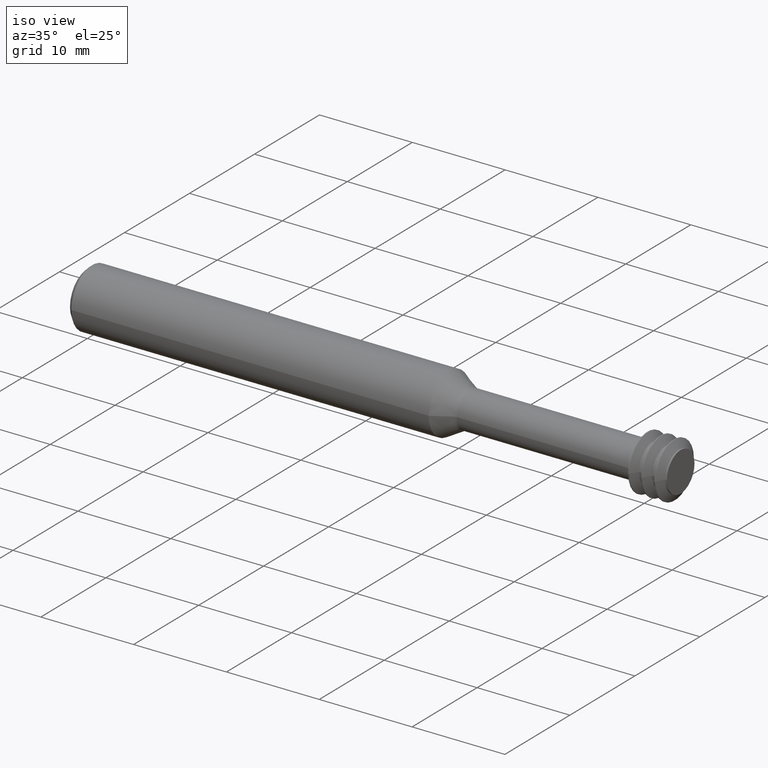
[diagram: clean part render]
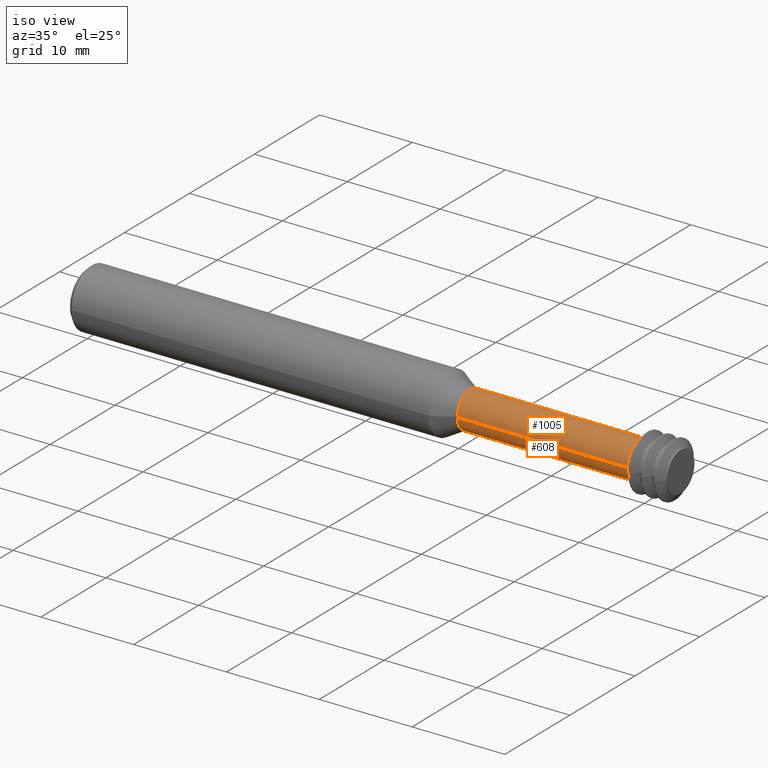
[diagram: same view with one multi-face feature highlighted, each face labeled with its STEP entity id]
A machine part, iso view. The highlighted faces form ONE feature: a constant-radius fillet chain: 2 tangent blend faces with common blend radius 1.9812 mm. The faces share edges in the B-rep.
Their STEP definitions:
[1] entity #608 (Cylinder):
#53 = CARTESIAN_POINT ( 'NONE',  ( 2.350000000000000089, 0.07800000000000002764, 9.552245033349358517E-18 ) ) ;
#56 = ORIENTED_EDGE ( 'NONE', *, *, #462, .F. ) ;
#58 = DIRECTION ( 'NONE',  ( 0.000000000000000000, 1.000000000000000000, 0.000000000000000000 ) ) ;
#89 = CARTESIAN_POINT ( 'NONE',  ( 2.350000000000000089, 0.07800000000000002764, 9.552245033349358517E-18 ) ) ;
#151 = CARTESIAN_POINT ( 'NONE',  ( 2.350000000000000089, -7.258347044323575049E-19, 0.000000000000000000 ) ) ;
#152 = DIRECTION ( 'NONE',  ( 0.000000000000000000, -1.000000000000000000, 0.000000000000000000 ) ) ;
#159 = EDGE_CURVE ( 'NONE', #473, #269, #414, .T. ) ;
#177 = DIRECTION ( 'NONE',  ( -1.000000000000000000, 2.239313081137374464E-19, -0.000000000000000000 ) ) ;
#206 = VERTEX_POINT ( 'NONE', #89 ) ;
#269 = VERTEX_POINT ( 'NONE', #614 ) ;
#286 = EDGE_LOOP ( 'NONE', ( #910, #56, #298, #946 ) ) ;
#298 = ORIENTED_EDGE ( 'NONE', *, *, #959, .T. ) ;
#308 = CARTESIAN_POINT ( 'NONE',  ( 2.350000000000000089, -0.07800000000000002764, 0.000000000000000000 ) ) ;
#339 = CYLINDRICAL_SURFACE ( 'NONE', #344, 0.07800000000000002764 ) ;
#344 = AXIS2_PLACEMENT_3D ( 'NONE', #736, #177, #586 ) ;
#411 = FACE_OUTER_BOUND ( 'NONE', #286, .T. ) ;
#414 = CIRCLE ( 'NONE', #769, 0.07800000000000006928 ) ;
#462 = EDGE_CURVE ( 'NONE', #866, #206, #870, .T. ) ;
#473 = VERTEX_POINT ( 'NONE', #636 ) ;
#543 = EDGE_CURVE ( 'NONE', #206, #473, #792, .T. ) ;
#586 = DIRECTION ( 'NONE',  ( 0.000000000000000000, -1.000000000000000000, 0.000000000000000000 ) ) ;
#608 = ADVANCED_FACE ( 'NONE', ( #411 ), #339, .T. ) ;
#614 = CARTESIAN_POINT ( 'NONE',  ( 1.623698729810778119, -0.07800000000000006928, 0.000000000000000000 ) ) ;
#631 = CARTESIAN_POINT ( 'NONE',  ( 2.350000000000000089, -0.07800000000000002764, 0.000000000000000000 ) ) ;
#636 = CARTESIAN_POINT ( 'NONE',  ( 1.623698729810778119, 0.07800000000000006928, 9.757334483877418539E-18 ) ) ;
#637 = CARTESIAN_POINT ( 'NONE',  ( 1.623698729810778119, -5.631931109142160038E-19, 0.000000000000000000 ) ) ;
#736 = CARTESIAN_POINT ( 'NONE',  ( 2.350000000000000089, -7.258347044323575049E-19, 0.000000000000000000 ) ) ;
#738 = DIRECTION ( 'NONE',  ( -1.000000000000000000, 2.239313081137374464E-19, -0.000000000000000000 ) ) ;
#769 = AXIS2_PLACEMENT_3D ( 'NONE', #637, #738, #152 ) ;
#792 = LINE ( 'NONE', #53, #1003 ) ;
#854 = VECTOR ( 'NONE', #1024, 39.37007874015748143 ) ;
#866 = VERTEX_POINT ( 'NONE', #631 ) ;
#870 = CIRCLE ( 'NONE', #987, 0.07800000000000002764 ) ;
#880 = DIRECTION ( 'NONE',  ( -1.000000000000000000, 2.239313081137374464E-19, -0.000000000000000000 ) ) ;
#887 = LINE ( 'NONE', #308, #854 ) ;
#910 = ORIENTED_EDGE ( 'NONE', *, *, #543, .F. ) ;
#946 = ORIENTED_EDGE ( 'NONE', *, *, #159, .F. ) ;
#959 = EDGE_CURVE ( 'NONE', #866, #269, #887, .T. ) ;
#987 = AXIS2_PLACEMENT_3D ( 'NONE', #151, #1030, #58 ) ;
#1003 = VECTOR ( 'NONE', #880, 39.37007874015748143 ) ;
#1024 = DIRECTION ( 'NONE',  ( -1.000000000000000000, 2.239313081137374464E-19, -0.000000000000000000 ) ) ;
#1030 = DIRECTION ( 'NONE',  ( 1.000000000000000000, -2.239313081137374464E-19, 0.000000000000000000 ) ) ;
[2] entity #1005 (Cylinder):
#53 = CARTESIAN_POINT ( 'NONE',  ( 2.350000000000000089, 0.07800000000000002764, 9.552245033349358517E-18 ) ) ;
#89 = CARTESIAN_POINT ( 'NONE',  ( 2.350000000000000089, 0.07800000000000002764, 9.552245033349358517E-18 ) ) ;
#90 = ORIENTED_EDGE ( 'NONE', *, *, #355, .F. ) ;
#142 = CYLINDRICAL_SURFACE ( 'NONE', #453, 0.07800000000000002764 ) ;
#206 = VERTEX_POINT ( 'NONE', #89 ) ;
#255 = CARTESIAN_POINT ( 'NONE',  ( 1.623698729810778119, -5.631931109142160038E-19, 0.000000000000000000 ) ) ;
#269 = VERTEX_POINT ( 'NONE', #614 ) ;
#308 = CARTESIAN_POINT ( 'NONE',  ( 2.350000000000000089, -0.07800000000000002764, 0.000000000000000000 ) ) ;
#355 = EDGE_CURVE ( 'NONE', #206, #866, #836, .T. ) ;
#407 = DIRECTION ( 'NONE',  ( -1.000000000000000000, 2.239313081137374464E-19, -0.000000000000000000 ) ) ;
#450 = DIRECTION ( 'NONE',  ( 1.000000000000000000, -2.239313081137374464E-19, 0.000000000000000000 ) ) ;
#453 = AXIS2_PLACEMENT_3D ( 'NONE', #542, #952, #879 ) ;
#473 = VERTEX_POINT ( 'NONE', #636 ) ;
#514 = ORIENTED_EDGE ( 'NONE', *, *, #656, .F. ) ;
#539 = CIRCLE ( 'NONE', #749, 0.07800000000000006928 ) ;
#542 = CARTESIAN_POINT ( 'NONE',  ( 2.350000000000000089, -7.258347044323575049E-19, 0.000000000000000000 ) ) ;
#543 = EDGE_CURVE ( 'NONE', #206, #473, #792, .T. ) ;
#569 = DIRECTION ( 'NONE',  ( 0.000000000000000000, -1.000000000000000000, 0.000000000000000000 ) ) ;
#614 = CARTESIAN_POINT ( 'NONE',  ( 1.623698729810778119, -0.07800000000000006928, 0.000000000000000000 ) ) ;
#631 = CARTESIAN_POINT ( 'NONE',  ( 2.350000000000000089, -0.07800000000000002764, 0.000000000000000000 ) ) ;
#636 = CARTESIAN_POINT ( 'NONE',  ( 1.623698729810778119, 0.07800000000000006928, 9.757334483877418539E-18 ) ) ;
#656 = EDGE_CURVE ( 'NONE', #269, #473, #539, .T. ) ;
#685 = DIRECTION ( 'NONE',  ( 0.000000000000000000, 1.000000000000000000, 0.000000000000000000 ) ) ;
#730 = AXIS2_PLACEMENT_3D ( 'NONE', #858, #450, #685 ) ;
#749 = AXIS2_PLACEMENT_3D ( 'NONE', #255, #407, #569 ) ;
#750 = ORIENTED_EDGE ( 'NONE', *, *, #543, .T. ) ;
#763 = EDGE_LOOP ( 'NONE', ( #90, #750, #514, #1033 ) ) ;
#791 = FACE_OUTER_BOUND ( 'NONE', #763, .T. ) ;
#792 = LINE ( 'NONE', #53, #1003 ) ;
#836 = CIRCLE ( 'NONE', #730, 0.07800000000000002764 ) ;
#854 = VECTOR ( 'NONE', #1024, 39.37007874015748143 ) ;
#858 = CARTESIAN_POINT ( 'NONE',  ( 2.350000000000000089, -7.258347044323575049E-19, 0.000000000000000000 ) ) ;
#866 = VERTEX_POINT ( 'NONE', #631 ) ;
#879 = DIRECTION ( 'NONE',  ( 0.000000000000000000, -1.000000000000000000, 0.000000000000000000 ) ) ;
#880 = DIRECTION ( 'NONE',  ( -1.000000000000000000, 2.239313081137374464E-19, -0.000000000000000000 ) ) ;
#887 = LINE ( 'NONE', #308, #854 ) ;
#952 = DIRECTION ( 'NONE',  ( -1.000000000000000000, 2.239313081137374464E-19, -0.000000000000000000 ) ) ;
#959 = EDGE_CURVE ( 'NONE', #866, #269, #887, .T. ) ;
#1003 = VECTOR ( 'NONE', #880, 39.37007874015748143 ) ;
#1005 = ADVANCED_FACE ( 'NONE', ( #791 ), #142, .T. ) ;
#1024 = DIRECTION ( 'NONE',  ( -1.000000000000000000, 2.239313081137374464E-19, -0.000000000000000000 ) ) ;
#1033 = ORIENTED_EDGE ( 'NONE', *, *, #959, .F. ) ;